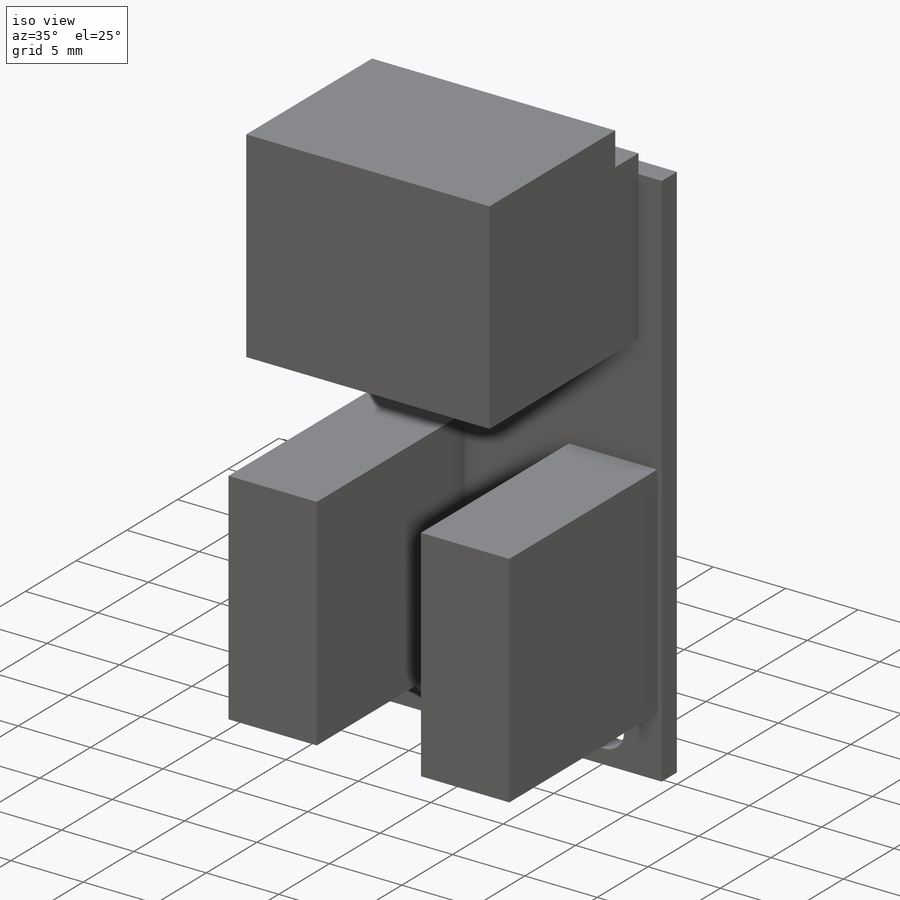
[diagram: iso view]
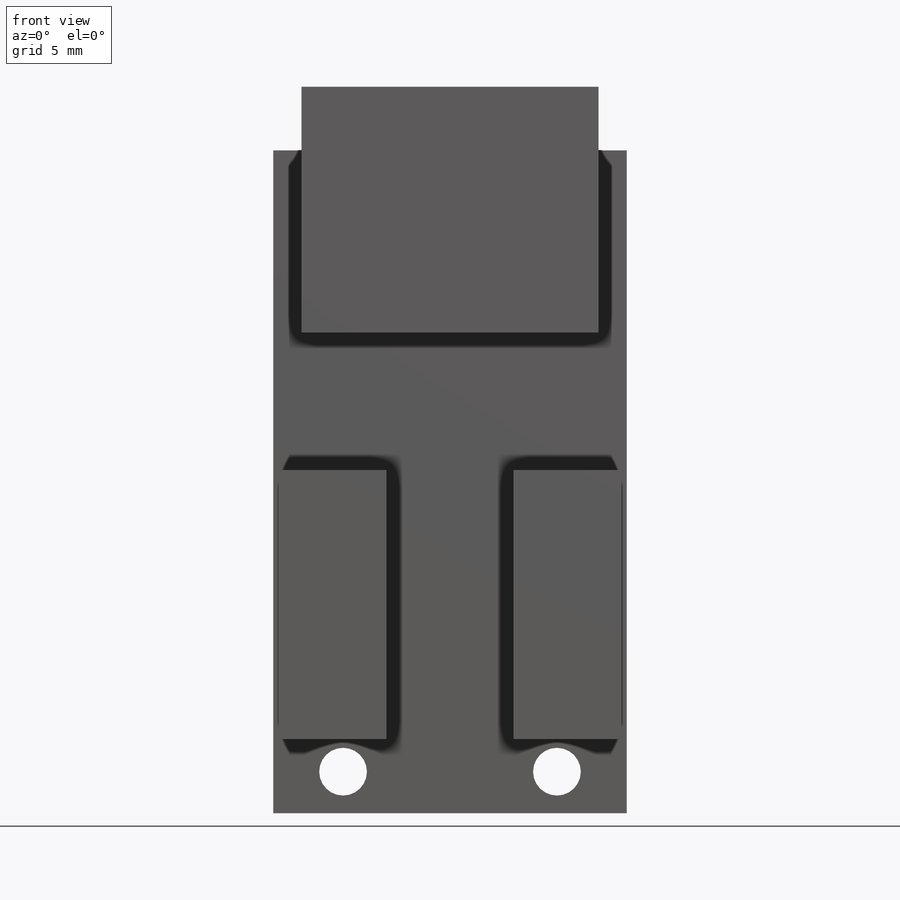
[diagram: front view]
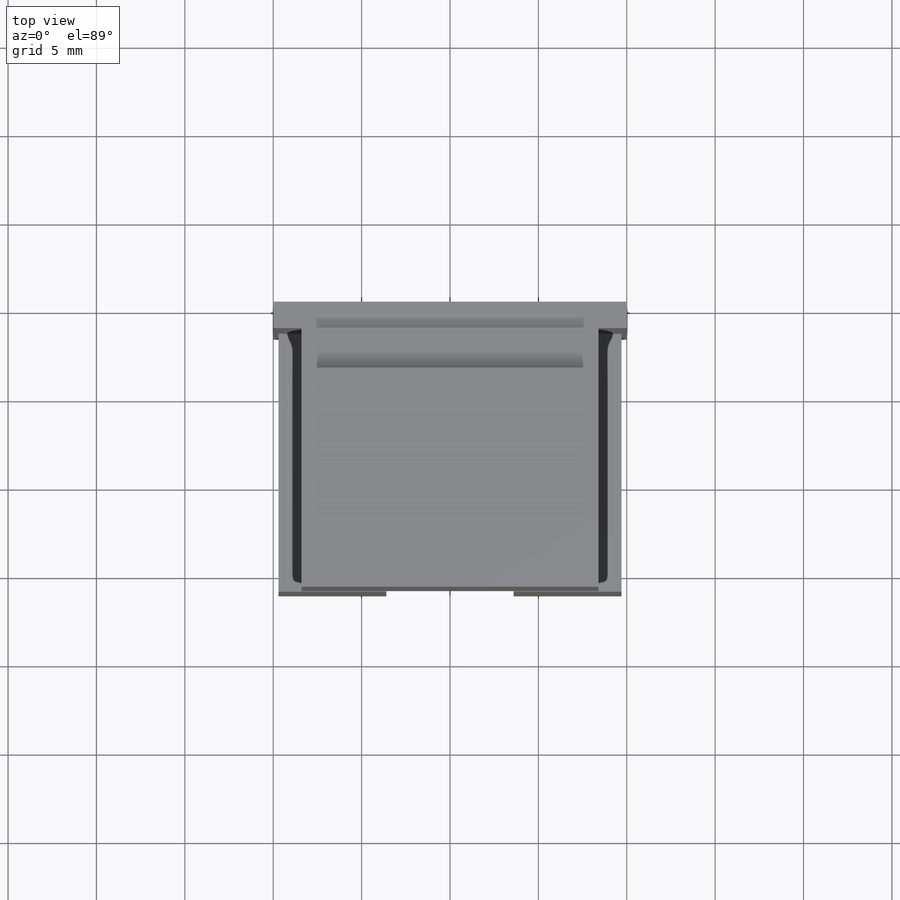
[diagram: top view]
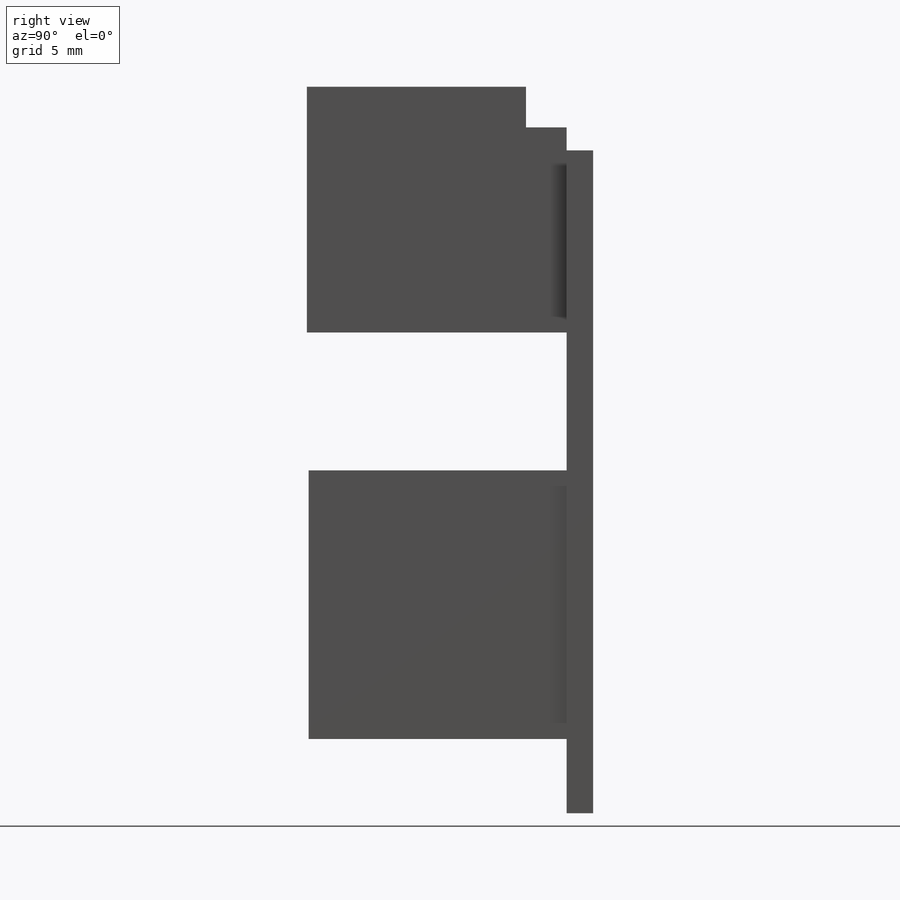
[diagram: right view]
SOLIDWORKS PART (.sldprt)
format: sldprt  version: not decoded by parser v0  size: 173,056 bytes
history: native  units: mm
features: sketch x4, extrude x4, plane x3, material x1 (+13 scaffold rows collapsed)
feature tree (25):
  scaffold x13  (default folders/planes/origin — collapsed)
  material  "Material <sin especificar>"
  plane  "Alzado"
  plane  "Planta"
  plane  "Vista lateral"
  sketch  "Croquis1"  dims[D3=2.7mm D1=37.5mm D2=20.0mm D4=1.0mm D5=9.4mm]
  extrude  "Saliente-Extruir1"  Depth=1.5mm
  sketch  "Croquis2"  dims[D1=1.3mm D2=16.8mm D3=11.6mm]
  extrude  "Saliente-Extruir2"  Depth=2.3mm
  sketch  "Croquis3"  dims[D1=13.9mm]
  extrude  "Saliente-Extruir3"  Depth=12.4mm
  sketch  "Croquis4"  dims[D1=7.8mm D2=15.2mm D3=6.1mm D4=0.3mm D5=0.3mm]
  extrude  "Saliente-Extruir4"  Depth=14.6mm
decode coverage: 8 of 8 modeling features carry decoded parameters
note: suppression state not decoded; provenance and decode notes live in map.json
